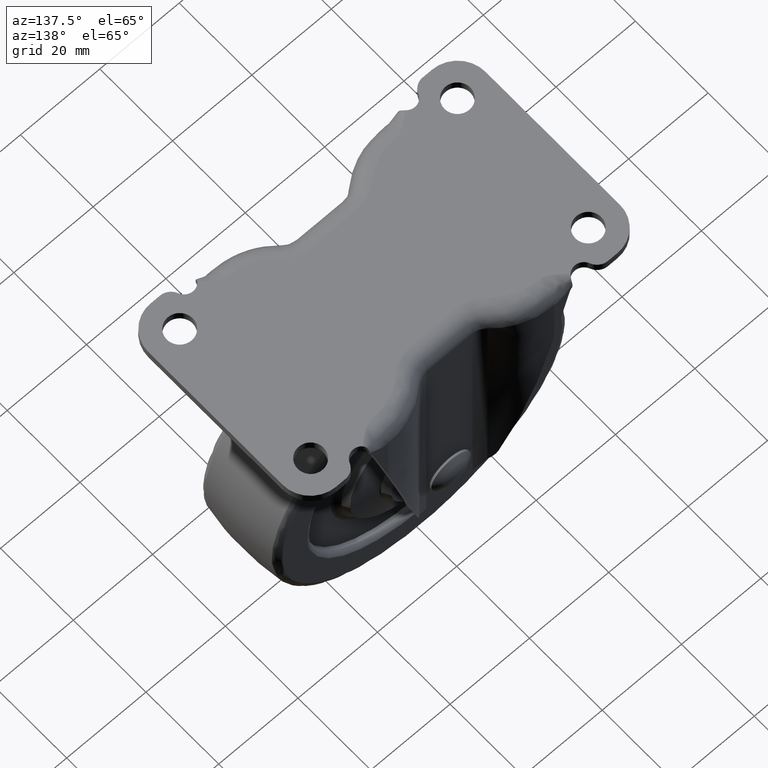
[diagram: clean part render]
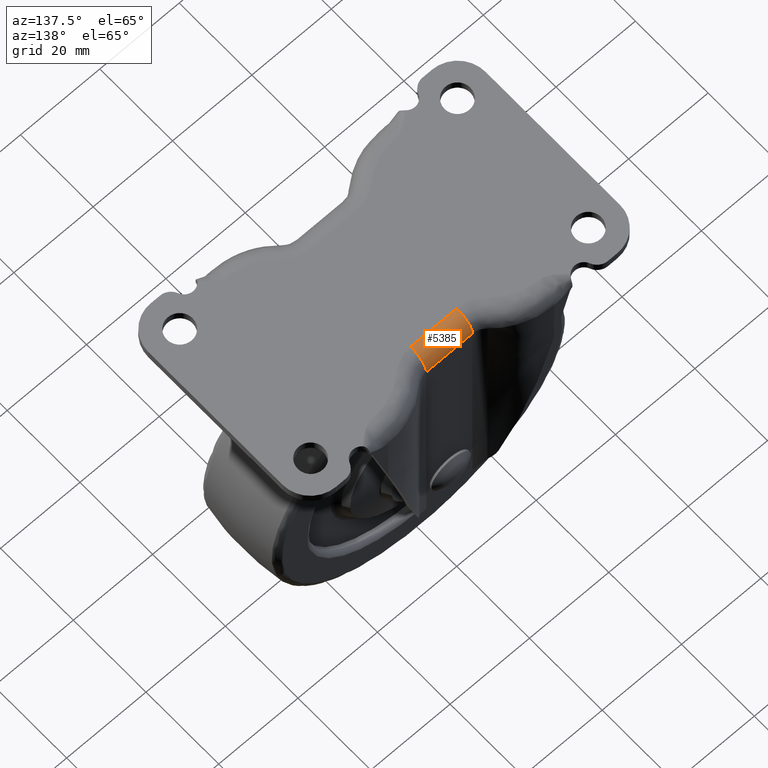
[diagram: same view with one face highlighted and labeled with its STEP entity id]
A machine part, auxiliary view. The second image highlights one B-rep face of the part: STEP entity #5385.
In plain terms, the highlighted face is a freeform B-spline surface patch.
Its self-contained STEP definition (entity closure, byte-faithful):
#5294=CARTESIAN_POINT('',(-5.816739000000100,13.699999999999999,0.0));
#5295=VERTEX_POINT('',#5294);
#5296=CARTESIAN_POINT('',(-5.816739000000100,18.0,-4.300000000000000));
#5297=VERTEX_POINT('',#5296);
#5298=CARTESIAN_POINT('',(-5.816739000000100,13.699999999999999,0.0));
#5299=CARTESIAN_POINT('',(-5.816739000000098,18.000000000000007,0.0));
#5300=CARTESIAN_POINT('',(-5.816739000000100,18.0,-4.300000000000000));
#5308=(BOUNDED_CURVE()B_SPLINE_CURVE(2,(#5298,#5299,#5300),.UNSPECIFIED.,.F.,.U.)CURVE()GEOMETRIC_REPRESENTATION_ITEM()QUASI_UNIFORM_CURVE()RATIONAL_B_SPLINE_CURVE((1.0,0.707106781186547,1.0))REPRESENTATION_ITEM(''));
#5309=EDGE_CURVE('',#5295,#5297,#5308,.T.);
#5341=CARTESIAN_POINT('',(6.107575949999901,17.998526497394899,-4.412560877723855));
#5342=CARTESIAN_POINT('',(-6.114846873750100,17.998526497394899,-4.412560877723855));
#5343=CARTESIAN_POINT('',(6.107575949999901,18.122516730620390,0.322435097036675));
#5344=CARTESIAN_POINT('',(-6.114846873750099,18.122516730620390,0.322435097036675));
#5345=CARTESIAN_POINT('',(6.107575949999901,13.397623264865510,-0.010644767561282));
#5346=CARTESIAN_POINT('',(-6.114846873750101,13.397623264865510,-0.010644767561282));
#5354=(BOUNDED_SURFACE()B_SPLINE_SURFACE(1,2,((#5341,#5343,#5345),(#5342,#5344,#5346)),.UNSPECIFIED.,.F.,.F.,.U.)B_SPLINE_SURFACE_WITH_KNOTS((2,2),(3,3),(0.0,12.222422823750000),(0.0,7.615912571285220),.UNSPECIFIED.)GEOMETRIC_REPRESENTATION_ITEM()RATIONAL_B_SPLINE_SURFACE(((1.0,0.670944201955793,0.996392690542261),(1.0,0.670944201955793,0.996392690542261)))REPRESENTATION_ITEM('')SURFACE());
#5355=CARTESIAN_POINT('',(5.816738999999900,13.699999999999999,0.0));
#5356=VERTEX_POINT('',#5355);
#5357=CARTESIAN_POINT('',(5.816738999999900,18.0,-4.300000000000000));
#5358=VERTEX_POINT('',#5357);
#5359=CARTESIAN_POINT('',(5.816738999999900,13.699999999999999,0.0));
#5360=CARTESIAN_POINT('',(5.816738999999900,18.000000000000007,0.0));
#5361=CARTESIAN_POINT('',(5.816738999999900,18.0,-4.300000000000000));
#5369=(BOUNDED_CURVE()B_SPLINE_CURVE(2,(#5359,#5360,#5361),.UNSPECIFIED.,.F.,.U.)CURVE()GEOMETRIC_REPRESENTATION_ITEM()QUASI_UNIFORM_CURVE()RATIONAL_B_SPLINE_CURVE((1.0,0.707106781186547,1.0))REPRESENTATION_ITEM(''));
#5370=EDGE_CURVE('',#5356,#5358,#5369,.T.);
#5371=ORIENTED_EDGE('',*,*,#5370,.T.);
#5372=CARTESIAN_POINT('',(-5.816739000000100,18.0,-4.300000000000000));
#5373=CARTESIAN_POINT('',(5.816738999999900,18.0,-4.300000000000000));
#5374=QUASI_UNIFORM_CURVE('',1,(#5372,#5373),.UNSPECIFIED.,.F.,.U.);
#5375=EDGE_CURVE('',#5297,#5358,#5374,.T.);
#5376=ORIENTED_EDGE('',*,*,#5375,.F.);
#5377=ORIENTED_EDGE('',*,*,#5309,.F.);
#5378=CARTESIAN_POINT('',(5.816738999999900,13.699999999999999,0.0));
#5379=CARTESIAN_POINT('',(-5.816739000000100,13.699999999999999,0.0));
#5380=QUASI_UNIFORM_CURVE('',1,(#5378,#5379),.UNSPECIFIED.,.F.,.U.);
#5381=EDGE_CURVE('',#5356,#5295,#5380,.T.);
#5382=ORIENTED_EDGE('',*,*,#5381,.F.);
#5383=EDGE_LOOP('',(#5371,#5376,#5377,#5382));
#5384=FACE_OUTER_BOUND('',#5383,.T.);
#5385=ADVANCED_FACE('',(#5384),#5354,.T.);